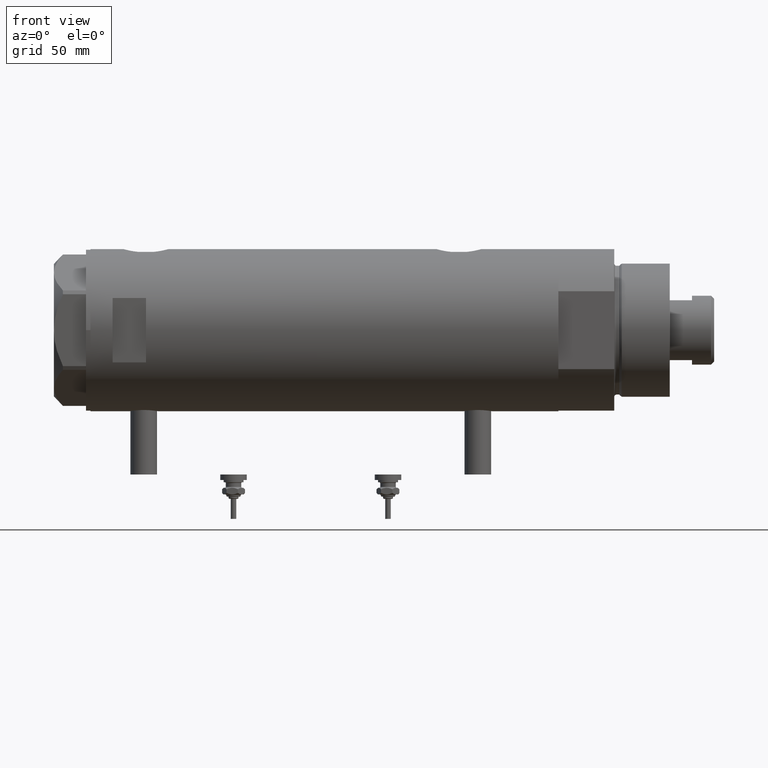
[diagram: clean part render]
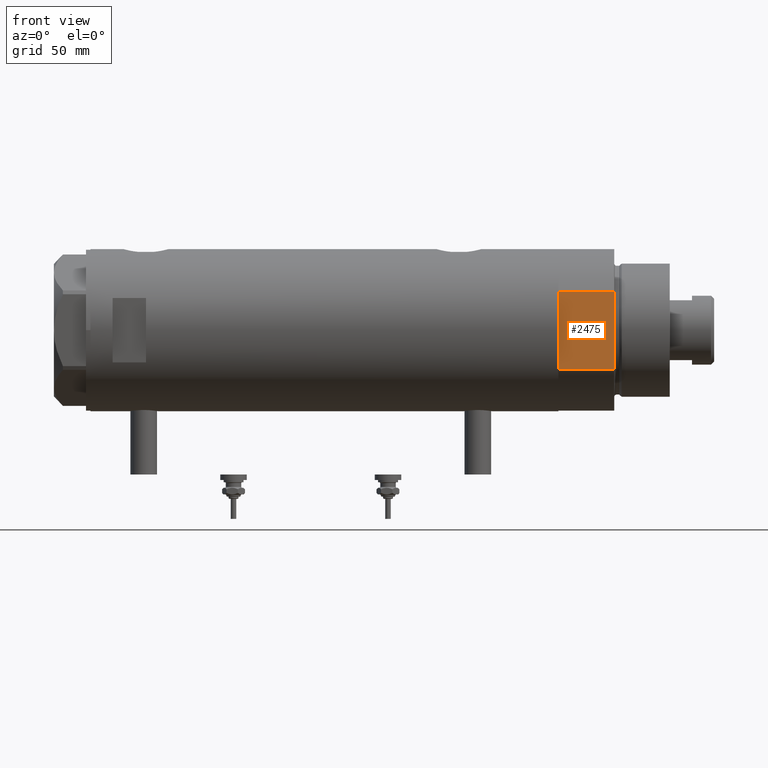
[diagram: same view with one face highlighted and labeled with its STEP entity id]
A machine part, front view. The second image highlights one B-rep face of the part: STEP entity #2475.
In plain terms, the highlighted planar face has unit normal (-0, 1, 0).
Its self-contained STEP definition (entity closure, byte-faithful):
#31 = VERTEX_POINT ( 'NONE', #1815 ) ;
#93 = VECTOR ( 'NONE', #4268, 1000.000000000000000 ) ;
#178 = CARTESIAN_POINT ( 'NONE',  ( 17.55704986607943141, -32.00000000000000000, 0.000000000000000000 ) ) ;
#389 = EDGE_LOOP ( 'NONE', ( #3019, #3552, #4811, #3984, #2131 ) ) ;
#653 = VECTOR ( 'NONE', #3780, 1000.000000000000000 ) ;
#976 = CARTESIAN_POINT ( 'NONE',  ( -17.55704986607943141, -32.00000000000000000, 25.19999999999999929 ) ) ;
#1051 = CARTESIAN_POINT ( 'NONE',  ( -17.55704986607943141, -32.00000000000000000, 0.000000000000000000 ) ) ;
#1365 = DIRECTION ( 'NONE',  ( -0.000000000000000000, -0.000000000000000000, 1.000000000000000000 ) ) ;
#1499 = DIRECTION ( 'NONE',  ( 0.000000000000000000, -0.000000000000000000, 1.000000000000000000 ) ) ;
#1815 = CARTESIAN_POINT ( 'NONE',  ( 17.55704986607943141, -32.00000000000000000, 0.000000000000000000 ) ) ;
#1893 = EDGE_CURVE ( 'NONE', #31, #5052, #5118, .T. ) ;
#2043 = CARTESIAN_POINT ( 'NONE',  ( -17.55704986607943496, -32.00000000000000000, 0.000000000000000000 ) ) ;
#2074 = PLANE ( 'NONE',  #4752 ) ;
#2131 = ORIENTED_EDGE ( 'NONE', *, *, #1893, .T. ) ;
#2475 = ADVANCED_FACE ( 'NONE', ( #4695 ), #2074, .F. ) ;
#2761 = CARTESIAN_POINT ( 'NONE',  ( -17.55704986607943496, -32.00000000000000000, 25.19999999999999929 ) ) ;
#2774 = CARTESIAN_POINT ( 'NONE',  ( 17.55704986607943496, -32.00000000000000000, 25.19999999999999929 ) ) ;
#2828 = EDGE_CURVE ( 'NONE', #5052, #5716, #5565, .T. ) ;
#2904 = DIRECTION ( 'NONE',  ( -0.000000000000000000, 1.000000000000000000, 0.000000000000000000 ) ) ;
#3019 = ORIENTED_EDGE ( 'NONE', *, *, #2828, .T. ) ;
#3501 = VERTEX_POINT ( 'NONE', #5108 ) ;
#3550 = VECTOR ( 'NONE', #5611, 1000.000000000000000 ) ;
#3552 = ORIENTED_EDGE ( 'NONE', *, *, #5626, .F. ) ;
#3756 = CARTESIAN_POINT ( 'NONE',  ( -17.55704986607943141, -32.00000000000000000, 0.000000000000000000 ) ) ;
#3780 = DIRECTION ( 'NONE',  ( -1.000000000000000000, -0.000000000000000000, -0.000000000000000000 ) ) ;
#3984 = ORIENTED_EDGE ( 'NONE', *, *, #5809, .F. ) ;
#4268 = DIRECTION ( 'NONE',  ( -1.000000000000000000, -0.000000000000000000, -0.000000000000000000 ) ) ;
#4302 = DIRECTION ( 'NONE',  ( -0.000000000000000000, -0.000000000000000000, 1.000000000000000000 ) ) ;
#4308 = LINE ( 'NONE', #4701, #3550 ) ;
#4695 = FACE_OUTER_BOUND ( 'NONE', #389, .T. ) ;
#4701 = CARTESIAN_POINT ( 'NONE',  ( -17.55704986607943141, -32.00000000000000000, 0.000000000000000000 ) ) ;
#4752 = AXIS2_PLACEMENT_3D ( 'NONE', #1051, #2904, #1499 ) ;
#4811 = ORIENTED_EDGE ( 'NONE', *, *, #5287, .F. ) ;
#4867 = VECTOR ( 'NONE', #1365, 1000.000000000000000 ) ;
#4900 = VERTEX_POINT ( 'NONE', #2043 ) ;
#5052 = VERTEX_POINT ( 'NONE', #2774 ) ;
#5108 = CARTESIAN_POINT ( 'NONE',  ( 0.000000000000000000, -32.00000000000000000, 0.000000000000000000 ) ) ;
#5118 = LINE ( 'NONE', #178, #5242 ) ;
#5242 = VECTOR ( 'NONE', #4302, 1000.000000000000000 ) ;
#5287 = EDGE_CURVE ( 'NONE', #3501, #4900, #5646, .T. ) ;
#5466 = LINE ( 'NONE', #3756, #4867 ) ;
#5565 = LINE ( 'NONE', #976, #653 ) ;
#5586 = CARTESIAN_POINT ( 'NONE',  ( -17.55704986607943141, -32.00000000000000000, 0.000000000000000000 ) ) ;
#5611 = DIRECTION ( 'NONE',  ( -1.000000000000000000, -0.000000000000000000, -0.000000000000000000 ) ) ;
#5626 = EDGE_CURVE ( 'NONE', #4900, #5716, #5466, .T. ) ;
#5646 = LINE ( 'NONE', #5586, #93 ) ;
#5716 = VERTEX_POINT ( 'NONE', #2761 ) ;
#5809 = EDGE_CURVE ( 'NONE', #31, #3501, #4308, .T. ) ;